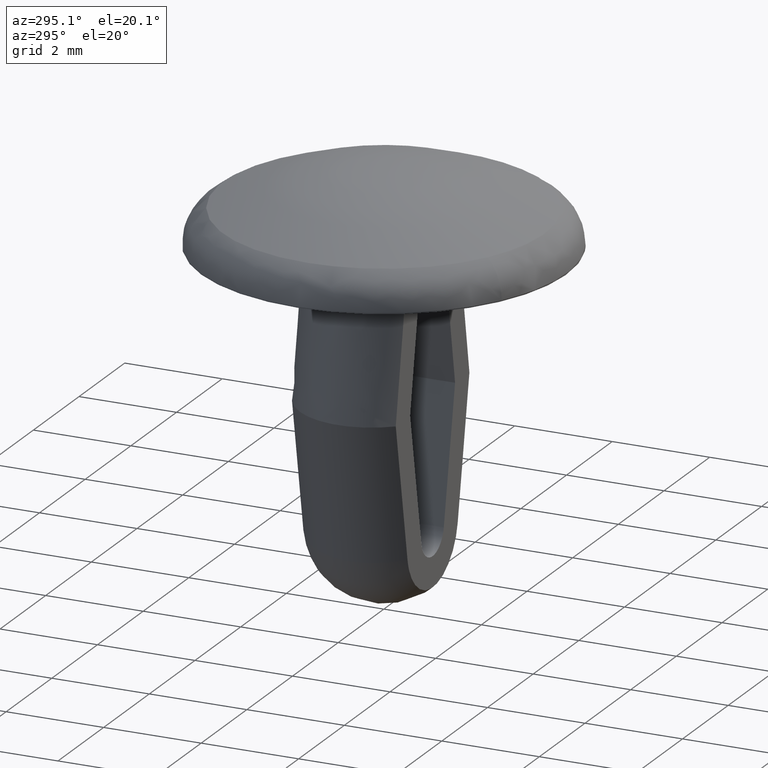
[diagram: clean part render]
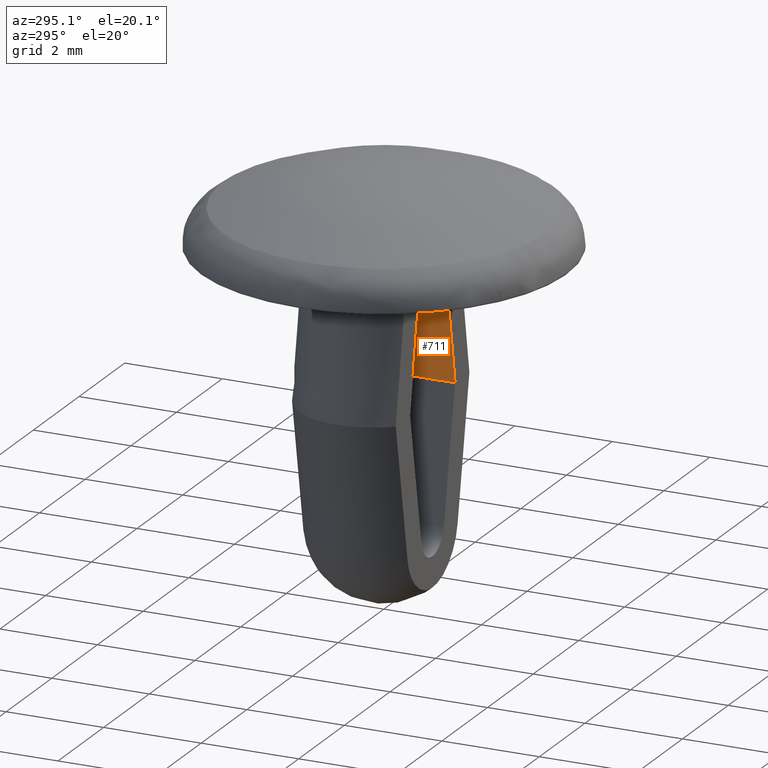
[diagram: same view with one face highlighted and labeled with its STEP entity id]
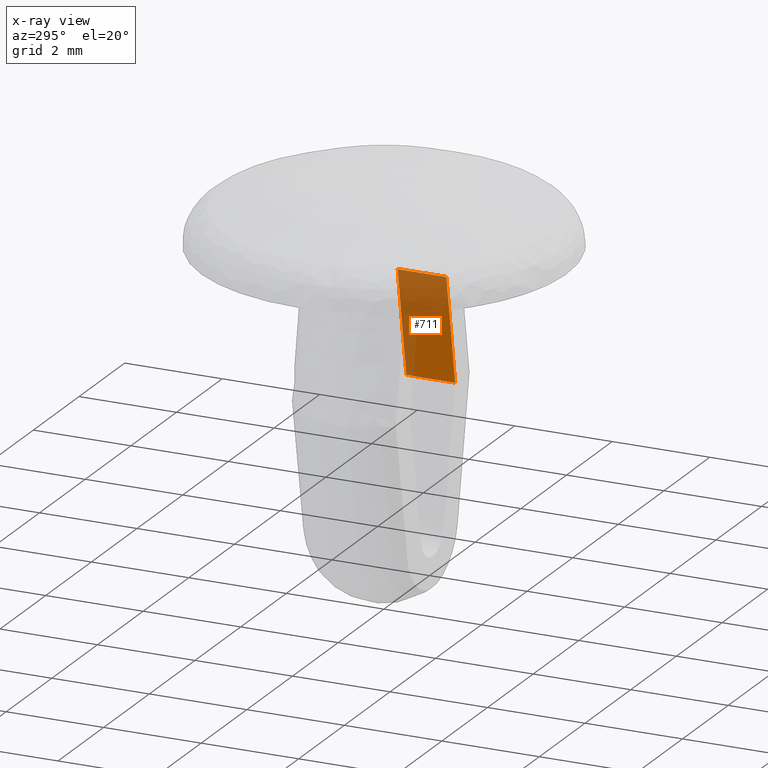
[diagram: x-ray of the same camera — body ghosted, the highlighted face saturated]
A machine part, auxiliary view. The second image highlights one B-rep face of the part: STEP entity #711.
The next image is the same camera in x-ray: the body ghosted, the highlighted face saturated — about 51% of this face is hidden behind the body in this view.
In plain terms, the highlighted face is a freeform B-spline surface patch.
Its self-contained STEP definition (entity closure, byte-faithful):
#436=CARTESIAN_POINT('',(0.601966999999988,-2.168404E-016,-0.676964000000000));
#437=VERTEX_POINT('',#436);
#462=CARTESIAN_POINT('',(0.984370058216885,-2.168404E-016,-2.894893737698580));
#463=VERTEX_POINT('',#462);
#479=CARTESIAN_POINT('',(0.984370058216885,-2.168404E-016,-2.894893737698580));
#480=CARTESIAN_POINT('',(0.601966999999988,-2.168404E-016,-0.676964000000000));
#481=QUASI_UNIFORM_CURVE('',1,(#479,#480),.UNSPECIFIED.,.F.,.U.);
#482=EDGE_CURVE('',#463,#437,#481,.T.);
#657=CARTESIAN_POINT('',(0.601962951374131,-1.0,-0.676964698056333));
#658=VERTEX_POINT('',#657);
#682=CARTESIAN_POINT('',(0.601966999999988,-2.168404E-016,-0.676964000000000));
#683=CARTESIAN_POINT('',(0.601962951374131,-1.0,-0.676964698056333));
#684=QUASI_UNIFORM_CURVE('',1,(#682,#683),.UNSPECIFIED.,.F.,.U.);
#685=EDGE_CURVE('',#437,#658,#684,.T.);
#690=CARTESIAN_POINT('',(0.582865965759711,-1.049949998061806,-0.566178401004399));
#691=CARTESIAN_POINT('',(1.003471071943462,-1.049949998061806,-3.005679217715158));
#692=CARTESIAN_POINT('',(0.582865965759711,0.049950024883896,-0.566178401004399));
#693=CARTESIAN_POINT('',(1.003471071943462,0.049950024883896,-3.005679217715158));
#694=B_SPLINE_SURFACE_WITH_KNOTS('',1,1,((#690,#692),(#691,#693)),.UNSPECIFIED.,.F.,.F.,.U.,(2,2),(2,2),(0.0,2.475494473853719),(0.041708334948495,0.958291687403247),.UNSPECIFIED.);
#695=CARTESIAN_POINT('',(0.984370058216884,-1.0,-2.894893737698580));
#696=VERTEX_POINT('',#695);
#697=CARTESIAN_POINT('',(0.984370058216884,-1.0,-2.894893737698580));
#698=CARTESIAN_POINT('',(0.601962951374131,-1.0,-0.676964698056333));
#699=QUASI_UNIFORM_CURVE('',1,(#697,#698),.UNSPECIFIED.,.F.,.U.);
#700=EDGE_CURVE('',#696,#658,#699,.T.);
#701=ORIENTED_EDGE('',*,*,#700,.T.);
#702=ORIENTED_EDGE('',*,*,#685,.F.);
#703=ORIENTED_EDGE('',*,*,#482,.F.);
#704=CARTESIAN_POINT('',(0.984370058216885,-2.168404E-016,-2.894893737698580));
#705=CARTESIAN_POINT('',(0.984370058216884,-1.0,-2.894893737698580));
#706=QUASI_UNIFORM_CURVE('',1,(#704,#705),.UNSPECIFIED.,.F.,.U.);
#707=EDGE_CURVE('',#463,#696,#706,.T.);
#708=ORIENTED_EDGE('',*,*,#707,.T.);
#709=EDGE_LOOP('',(#701,#702,#703,#708));
#710=FACE_OUTER_BOUND('',#709,.T.);
#711=ADVANCED_FACE('',(#710),#694,.F.);